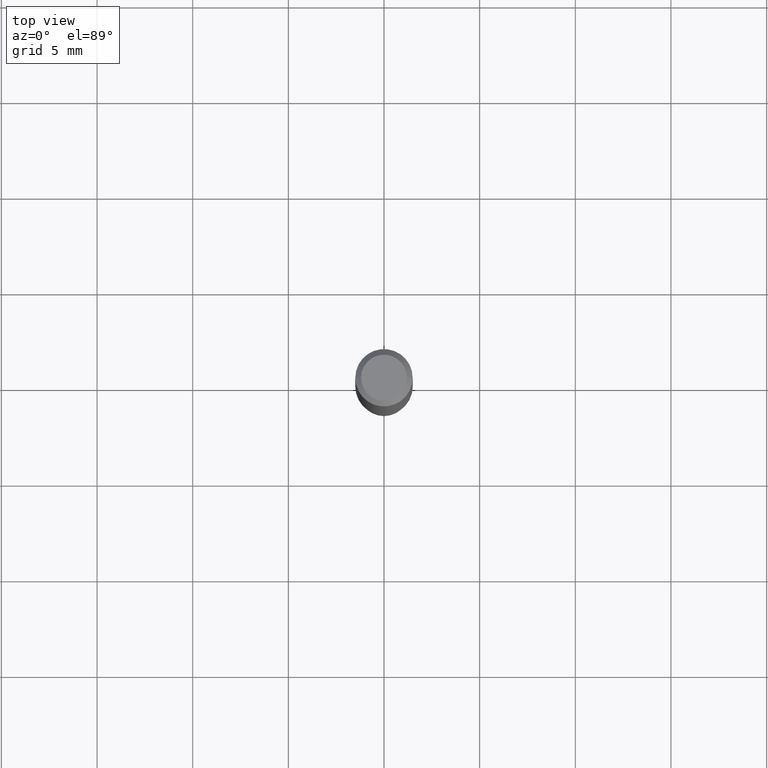
[diagram: clean part render]
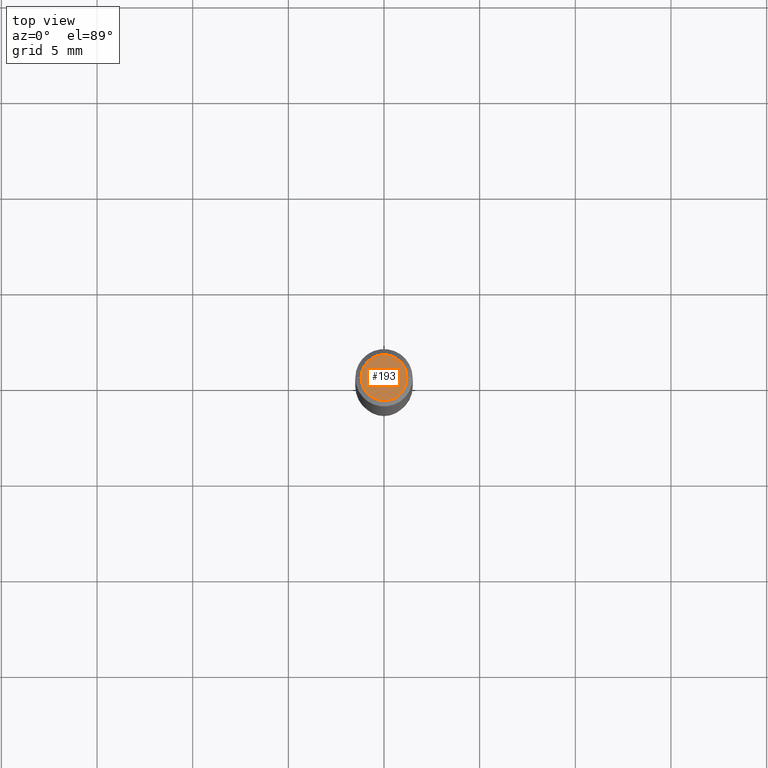
[diagram: same view with one face highlighted and labeled with its STEP entity id]
A machine part, top view. The second image highlights one B-rep face of the part: STEP entity #193.
In plain terms, the highlighted planar face has unit normal (0, -0, -1).
Its self-contained STEP definition (entity closure, byte-faithful):
#3 = DIRECTION ( 'NONE',  ( -2.445468806185136597E-29, 3.491481338843145583E-15, 1.000000000000000000 ) ) ;
#27 = FACE_OUTER_BOUND ( 'NONE', #92, .T. ) ;
#32 = AXIS2_PLACEMENT_3D ( 'NONE', #361, #478, #393 ) ;
#81 = CARTESIAN_POINT ( 'NONE',  ( 8.265746106709734507E-48, -1.180129479067563789E-33, -3.380025165646692144E-19 ) ) ;
#92 = EDGE_LOOP ( 'NONE', ( #424, #324 ) ) ;
#130 = CIRCLE ( 'NONE', #368, 0.04724000000000000421 ) ;
#150 = CARTESIAN_POINT ( 'NONE',  ( 8.265746106709734507E-48, -1.180129479067563789E-33, -3.380025165646692144E-19 ) ) ;
#159 = VERTEX_POINT ( 'NONE', #327 ) ;
#175 = PLANE ( 'NONE',  #32 ) ;
#193 = ADVANCED_FACE ( 'NONE', ( #27 ), #175, .F. ) ;
#221 = DIRECTION ( 'NONE',  ( 1.000000000000000000, -6.982962677686266711E-15, 4.876185090822587894E-29 ) ) ;
#230 = VERTEX_POINT ( 'NONE', #395 ) ;
#240 = CIRCLE ( 'NONE', #407, 0.04724000000000000421 ) ;
#324 = ORIENTED_EDGE ( 'NONE', *, *, #370, .T. ) ;
#327 = CARTESIAN_POINT ( 'NONE',  ( 0.04724000000000000421, -3.852183633974369345E-16, -3.380025165621689721E-19 ) ) ;
#361 = CARTESIAN_POINT ( 'NONE',  ( 4.132873053354867254E-48, -5.900647395337818946E-34, -1.690012582823346072E-19 ) ) ;
#368 = AXIS2_PLACEMENT_3D ( 'NONE', #150, #3, #221 ) ;
#370 = EDGE_CURVE ( 'NONE', #159, #230, #130, .T. ) ;
#393 = DIRECTION ( 'NONE',  ( -1.000000000000000000, 6.982962677686265922E-15, -4.876176775795935793E-29 ) ) ;
#395 = CARTESIAN_POINT ( 'NONE',  ( -0.04724000000000000421, 3.504923541997677355E-16, -3.380025165670481712E-19 ) ) ;
#407 = AXIS2_PLACEMENT_3D ( 'NONE', #81, #458, #414 ) ;
#414 = DIRECTION ( 'NONE',  ( 1.000000000000000000, -6.982962677686266711E-15, 4.876185090822587894E-29 ) ) ;
#424 = ORIENTED_EDGE ( 'NONE', *, *, #482, .T. ) ;
#458 = DIRECTION ( 'NONE',  ( -2.445468806185136597E-29, 3.491481338843145583E-15, 1.000000000000000000 ) ) ;
#478 = DIRECTION ( 'NONE',  ( 2.438088387897960049E-29, -3.491481338843145188E-15, -1.000000000000000000 ) ) ;
#482 = EDGE_CURVE ( 'NONE', #230, #159, #240, .T. ) ;